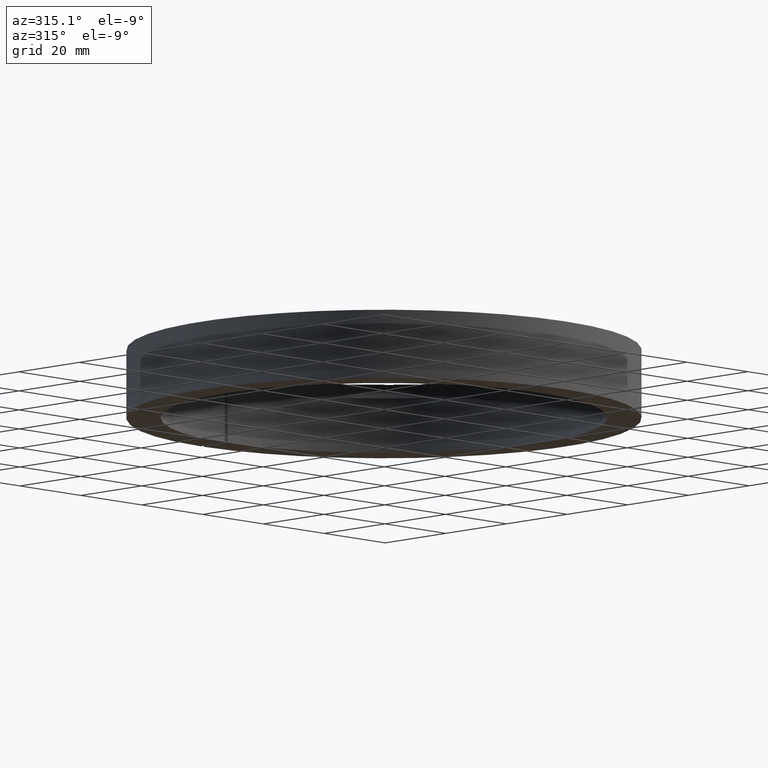
[diagram: clean part render]
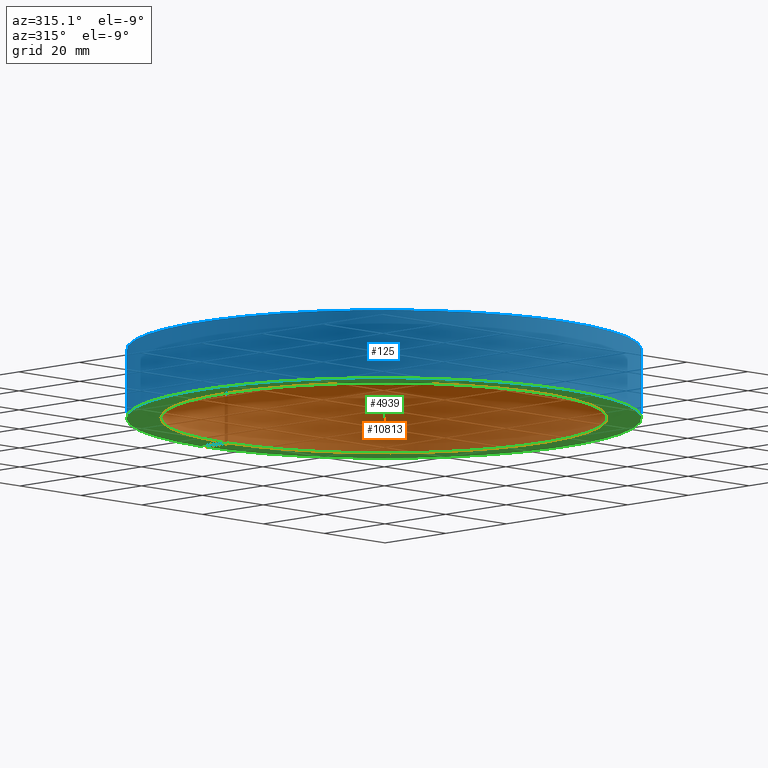
[diagram: same view with three faces highlighted in distinct colors, each labeled with its STEP entity id]
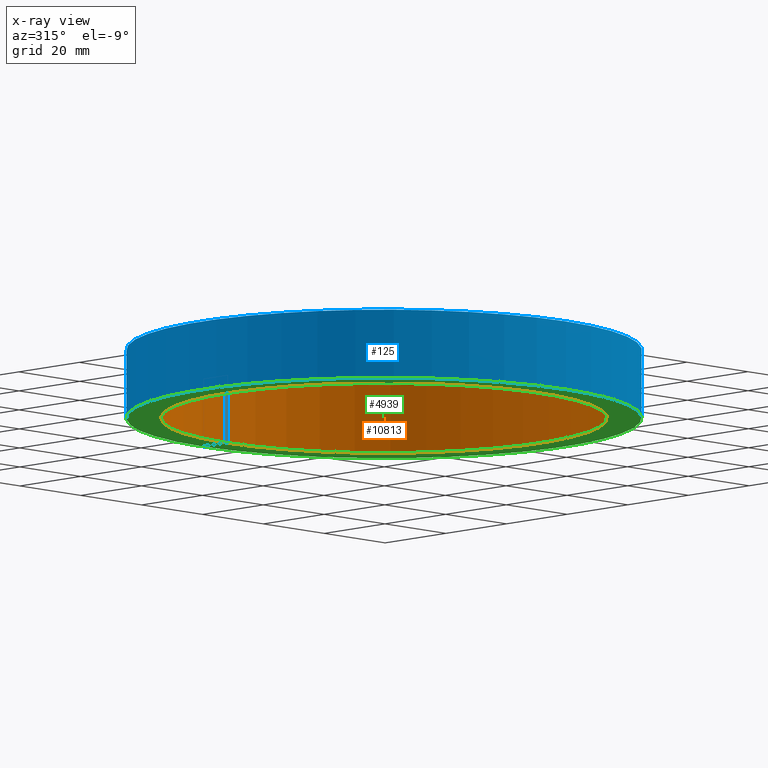
[diagram: x-ray of the same camera — body ghosted, the three highlighted faces saturated]
A machine part, auxiliary view with three faces highlighted in distinct colors.
The next image is the same camera in x-ray (body ghosted, the three faces saturated) — at least one of them is partly hidden behind the body in this view.
Their STEP definitions:

[orange] entity #10813 — the highlighted cylindrical surface (partial cylindrical patch) has radius 52 mm, axis along (-0, -0, -1).
#93 = VERTEX_POINT ( 'NONE', #8527 ) ;
#303 = AXIS2_PLACEMENT_3D ( 'NONE', #7861, #12617, #10768 ) ;
#441 = VECTOR ( 'NONE', #5604, 1000.000000000000000 ) ;
#776 = CARTESIAN_POINT ( 'NONE',  ( 0.0000000000000000000, 0.0000000000000000000, -8.000000000000000000 ) ) ;
#846 = CARTESIAN_POINT ( 'NONE',  ( -0.5000000000000000000, 51.99759609828130600, 8.000000000000001800 ) ) ;
#2669 = DIRECTION ( 'NONE',  ( -1.000000000000000000, 0.0000000000000000000, 0.0000000000000000000 ) ) ;
#2822 = CARTESIAN_POINT ( 'NONE',  ( -0.5000000000000000000, 51.99759609828130600, -8.000000000000000000 ) ) ;
#3052 = EDGE_LOOP ( 'NONE', ( #4431, #5703, #8534, #3501 ) ) ;
#3501 = ORIENTED_EDGE ( 'NONE', *, *, #6434, .T. ) ;
#3651 = CYLINDRICAL_SURFACE ( 'NONE', #8446, 52.00000000000000000 ) ;
#3721 = DIRECTION ( 'NONE',  ( -0.0000000000000000000, -0.0000000000000000000, -1.000000000000000000 ) ) ;
#4113 = CARTESIAN_POINT ( 'NONE',  ( 0.0000000000000000000, 0.0000000000000000000, 0.0000000000000000000 ) ) ;
#4431 = ORIENTED_EDGE ( 'NONE', *, *, #5001, .F. ) ;
#4650 = VERTEX_POINT ( 'NONE', #11260 ) ;
#4892 = CARTESIAN_POINT ( 'NONE',  ( 0.5000000000000000000, 51.99759609828130600, -8.000000000000000000 ) ) ;
#4928 = VERTEX_POINT ( 'NONE', #846 ) ;
#5001 = EDGE_CURVE ( 'NONE', #10436, #4928, #5566, .T. ) ;
#5095 = DIRECTION ( 'NONE',  ( -0.0000000000000000000, -0.0000000000000000000, -1.000000000000000000 ) ) ;
#5566 = CIRCLE ( 'NONE', #303, 52.00000000000000000 ) ;
#5604 = DIRECTION ( 'NONE',  ( -0.0000000000000000000, -0.0000000000000000000, 1.000000000000000000 ) ) ;
#5703 = ORIENTED_EDGE ( 'NONE', *, *, #6997, .F. ) ;
#6378 = CARTESIAN_POINT ( 'NONE',  ( 0.5000000000000000000, 51.99759609828130600, 8.000000000000001800 ) ) ;
#6434 = EDGE_CURVE ( 'NONE', #4650, #4928, #6799, .T. ) ;
#6469 = LINE ( 'NONE', #4892, #12030 ) ;
#6577 = FACE_OUTER_BOUND ( 'NONE', #3052, .T. ) ;
#6799 = LINE ( 'NONE', #2822, #441 ) ;
#6997 = EDGE_CURVE ( 'NONE', #93, #10436, #6469, .T. ) ;
#7138 = AXIS2_PLACEMENT_3D ( 'NONE', #776, #3721, #2669 ) ;
#7861 = CARTESIAN_POINT ( 'NONE',  ( 0.0000000000000000000, 0.0000000000000000000, 8.000000000000001800 ) ) ;
#8080 = DIRECTION ( 'NONE',  ( -0.0000000000000000000, -0.0000000000000000000, 1.000000000000000000 ) ) ;
#8446 = AXIS2_PLACEMENT_3D ( 'NONE', #4113, #5095, #10049 ) ;
#8527 = CARTESIAN_POINT ( 'NONE',  ( 0.5000000000000000000, 51.99759609828130600, -8.000000000000000000 ) ) ;
#8534 = ORIENTED_EDGE ( 'NONE', *, *, #9459, .T. ) ;
#9216 = CIRCLE ( 'NONE', #7138, 52.00000000000000000 ) ;
#9459 = EDGE_CURVE ( 'NONE', #93, #4650, #9216, .T. ) ;
#10049 = DIRECTION ( 'NONE',  ( -1.000000000000000000, 0.0000000000000000000, 0.0000000000000000000 ) ) ;
#10436 = VERTEX_POINT ( 'NONE', #6378 ) ;
#10768 = DIRECTION ( 'NONE',  ( -1.000000000000000000, 0.0000000000000000000, 0.0000000000000000000 ) ) ;
#10813 = ADVANCED_FACE ( 'NONE', ( #6577 ), #3651, .F. ) ;
#11260 = CARTESIAN_POINT ( 'NONE',  ( -0.5000000000000000000, 51.99759609828130600, -8.000000000000000000 ) ) ;
#12030 = VECTOR ( 'NONE', #8080, 1000.000000000000000 ) ;
#12617 = DIRECTION ( 'NONE',  ( -0.0000000000000000000, -0.0000000000000000000, -1.000000000000000000 ) ) ;

[blue] entity #125 — the highlighted cylindrical surface (partial cylindrical patch) has radius 60 mm, axis along (-0, -0, -1).
#121 = ORIENTED_EDGE ( 'NONE', *, *, #12251, .F. ) ;
#125 = ADVANCED_FACE ( 'NONE', ( #3194 ), #10421, .T. ) ;
#581 = CIRCLE ( 'NONE', #9918, 60.00000000000000000 ) ;
#763 = DIRECTION ( 'NONE',  ( -0.0000000000000000000, -0.0000000000000000000, -1.000000000000000000 ) ) ;
#1624 = EDGE_CURVE ( 'NONE', #5808, #12178, #2139, .T. ) ;
#1782 = AXIS2_PLACEMENT_3D ( 'NONE', #7448, #11509, #8560 ) ;
#2139 = LINE ( 'NONE', #7773, #2443 ) ;
#2286 = VERTEX_POINT ( 'NONE', #7532 ) ;
#2443 = VECTOR ( 'NONE', #3853, 1000.000000000000000 ) ;
#2657 = AXIS2_PLACEMENT_3D ( 'NONE', #11198, #11163, #3360 ) ;
#2981 = CARTESIAN_POINT ( 'NONE',  ( 0.5000000000000000000, 59.99791663049642700, -8.000000000000000000 ) ) ;
#3194 = FACE_OUTER_BOUND ( 'NONE', #6982, .T. ) ;
#3337 = DIRECTION ( 'NONE',  ( -0.0000000000000000000, -0.0000000000000000000, 1.000000000000000000 ) ) ;
#3360 = DIRECTION ( 'NONE',  ( -1.000000000000000000, 0.0000000000000000000, 0.0000000000000000000 ) ) ;
#3853 = DIRECTION ( 'NONE',  ( -0.0000000000000000000, -0.0000000000000000000, 1.000000000000000000 ) ) ;
#3993 = CARTESIAN_POINT ( 'NONE',  ( 0.5000000000000000000, 59.99791663049643400, 8.000000000000000000 ) ) ;
#4618 = DIRECTION ( 'NONE',  ( -1.000000000000000000, 0.0000000000000000000, 0.0000000000000000000 ) ) ;
#4669 = CARTESIAN_POINT ( 'NONE',  ( -0.5000000000000000000, 59.99791663049642700, 8.000000000000001800 ) ) ;
#5070 = LINE ( 'NONE', #8387, #5365 ) ;
#5365 = VECTOR ( 'NONE', #3337, 1000.000000000000000 ) ;
#5372 = VERTEX_POINT ( 'NONE', #4669 ) ;
#5632 = ORIENTED_EDGE ( 'NONE', *, *, #8862, .T. ) ;
#5808 = VERTEX_POINT ( 'NONE', #2981 ) ;
#6264 = CIRCLE ( 'NONE', #2657, 60.00000000000000000 ) ;
#6982 = EDGE_LOOP ( 'NONE', ( #121, #9870, #5632, #10277 ) ) ;
#7448 = CARTESIAN_POINT ( 'NONE',  ( 0.0000000000000000000, 0.0000000000000000000, 0.0000000000000000000 ) ) ;
#7532 = CARTESIAN_POINT ( 'NONE',  ( -0.5000000000000000000, 59.99791663049643400, -8.000000000000000000 ) ) ;
#7773 = CARTESIAN_POINT ( 'NONE',  ( 0.5000000000000000000, 59.99791663049642700, -8.000000000000000000 ) ) ;
#8387 = CARTESIAN_POINT ( 'NONE',  ( -0.5000000000000000000, 59.99791663049642700, -8.000000000000000000 ) ) ;
#8460 = EDGE_CURVE ( 'NONE', #2286, #5372, #5070, .T. ) ;
#8560 = DIRECTION ( 'NONE',  ( -1.000000000000000000, 0.0000000000000000000, 0.0000000000000000000 ) ) ;
#8862 = EDGE_CURVE ( 'NONE', #12178, #5372, #581, .T. ) ;
#9870 = ORIENTED_EDGE ( 'NONE', *, *, #1624, .T. ) ;
#9918 = AXIS2_PLACEMENT_3D ( 'NONE', #11248, #763, #4618 ) ;
#10277 = ORIENTED_EDGE ( 'NONE', *, *, #8460, .F. ) ;
#10421 = CYLINDRICAL_SURFACE ( 'NONE', #1782, 60.00000000000000000 ) ;
#11163 = DIRECTION ( 'NONE',  ( -0.0000000000000000000, -0.0000000000000000000, -1.000000000000000000 ) ) ;
#11198 = CARTESIAN_POINT ( 'NONE',  ( 0.0000000000000000000, 0.0000000000000000000, -8.000000000000000000 ) ) ;
#11248 = CARTESIAN_POINT ( 'NONE',  ( 0.0000000000000000000, 0.0000000000000000000, 8.000000000000000000 ) ) ;
#11509 = DIRECTION ( 'NONE',  ( -0.0000000000000000000, -0.0000000000000000000, -1.000000000000000000 ) ) ;
#12178 = VERTEX_POINT ( 'NONE', #3993 ) ;
#12251 = EDGE_CURVE ( 'NONE', #5808, #2286, #6264, .T. ) ;

[green] entity #4939 — the highlighted planar face has unit normal (0, 0, 1).
#93 = VERTEX_POINT ( 'NONE', #8527 ) ;
#266 = VECTOR ( 'NONE', #10636, 1000.000000000000000 ) ;
#693 = VECTOR ( 'NONE', #10301, 1000.000000000000000 ) ;
#776 = CARTESIAN_POINT ( 'NONE',  ( 0.0000000000000000000, 0.0000000000000000000, -8.000000000000000000 ) ) ;
#1658 = EDGE_CURVE ( 'NONE', #4650, #2286, #9377, .T. ) ;
#2286 = VERTEX_POINT ( 'NONE', #7532 ) ;
#2657 = AXIS2_PLACEMENT_3D ( 'NONE', #11198, #11163, #3360 ) ;
#2669 = DIRECTION ( 'NONE',  ( -1.000000000000000000, 0.0000000000000000000, 0.0000000000000000000 ) ) ;
#2981 = CARTESIAN_POINT ( 'NONE',  ( 0.5000000000000000000, 59.99791663049642700, -8.000000000000000000 ) ) ;
#3090 = EDGE_LOOP ( 'NONE', ( #12210, #7263, #3115, #8007 ) ) ;
#3115 = ORIENTED_EDGE ( 'NONE', *, *, #12251, .T. ) ;
#3360 = DIRECTION ( 'NONE',  ( -1.000000000000000000, 0.0000000000000000000, 0.0000000000000000000 ) ) ;
#3494 = EDGE_CURVE ( 'NONE', #93, #5808, #6418, .T. ) ;
#3721 = DIRECTION ( 'NONE',  ( -0.0000000000000000000, -0.0000000000000000000, -1.000000000000000000 ) ) ;
#3749 = DIRECTION ( 'NONE',  ( 0.0000000000000000000, 0.0000000000000000000, 1.000000000000000000 ) ) ;
#4650 = VERTEX_POINT ( 'NONE', #11260 ) ;
#4875 = DIRECTION ( 'NONE',  ( 1.000000000000000000, 0.0000000000000000000, -0.0000000000000000000 ) ) ;
#4939 = ADVANCED_FACE ( 'NONE', ( #11575 ), #5763, .F. ) ;
#5682 = CARTESIAN_POINT ( 'NONE',  ( -0.5000000000000000000, 0.0000000000000000000, -8.000000000000000000 ) ) ;
#5763 = PLANE ( 'NONE',  #9309 ) ;
#5808 = VERTEX_POINT ( 'NONE', #2981 ) ;
#6264 = CIRCLE ( 'NONE', #2657, 60.00000000000000000 ) ;
#6418 = LINE ( 'NONE', #12078, #693 ) ;
#7138 = AXIS2_PLACEMENT_3D ( 'NONE', #776, #3721, #2669 ) ;
#7263 = ORIENTED_EDGE ( 'NONE', *, *, #3494, .T. ) ;
#7532 = CARTESIAN_POINT ( 'NONE',  ( -0.5000000000000000000, 59.99791663049643400, -8.000000000000000000 ) ) ;
#8007 = ORIENTED_EDGE ( 'NONE', *, *, #1658, .F. ) ;
#8527 = CARTESIAN_POINT ( 'NONE',  ( 0.5000000000000000000, 51.99759609828130600, -8.000000000000000000 ) ) ;
#8812 = CARTESIAN_POINT ( 'NONE',  ( 0.0000000000000000000, -52.00000000000000000, -8.000000000000000000 ) ) ;
#9216 = CIRCLE ( 'NONE', #7138, 52.00000000000000000 ) ;
#9309 = AXIS2_PLACEMENT_3D ( 'NONE', #8812, #3749, #4875 ) ;
#9377 = LINE ( 'NONE', #5682, #266 ) ;
#9459 = EDGE_CURVE ( 'NONE', #93, #4650, #9216, .T. ) ;
#10301 = DIRECTION ( 'NONE',  ( 0.0000000000000000000, 1.000000000000000000, -0.0000000000000000000 ) ) ;
#10636 = DIRECTION ( 'NONE',  ( 0.0000000000000000000, 1.000000000000000000, -0.0000000000000000000 ) ) ;
#11163 = DIRECTION ( 'NONE',  ( -0.0000000000000000000, -0.0000000000000000000, -1.000000000000000000 ) ) ;
#11198 = CARTESIAN_POINT ( 'NONE',  ( 0.0000000000000000000, 0.0000000000000000000, -8.000000000000000000 ) ) ;
#11260 = CARTESIAN_POINT ( 'NONE',  ( -0.5000000000000000000, 51.99759609828130600, -8.000000000000000000 ) ) ;
#11575 = FACE_OUTER_BOUND ( 'NONE', #3090, .T. ) ;
#12078 = CARTESIAN_POINT ( 'NONE',  ( 0.5000000000000000000, 0.0000000000000000000, -8.000000000000000000 ) ) ;
#12210 = ORIENTED_EDGE ( 'NONE', *, *, #9459, .F. ) ;
#12251 = EDGE_CURVE ( 'NONE', #5808, #2286, #6264, .T. ) ;